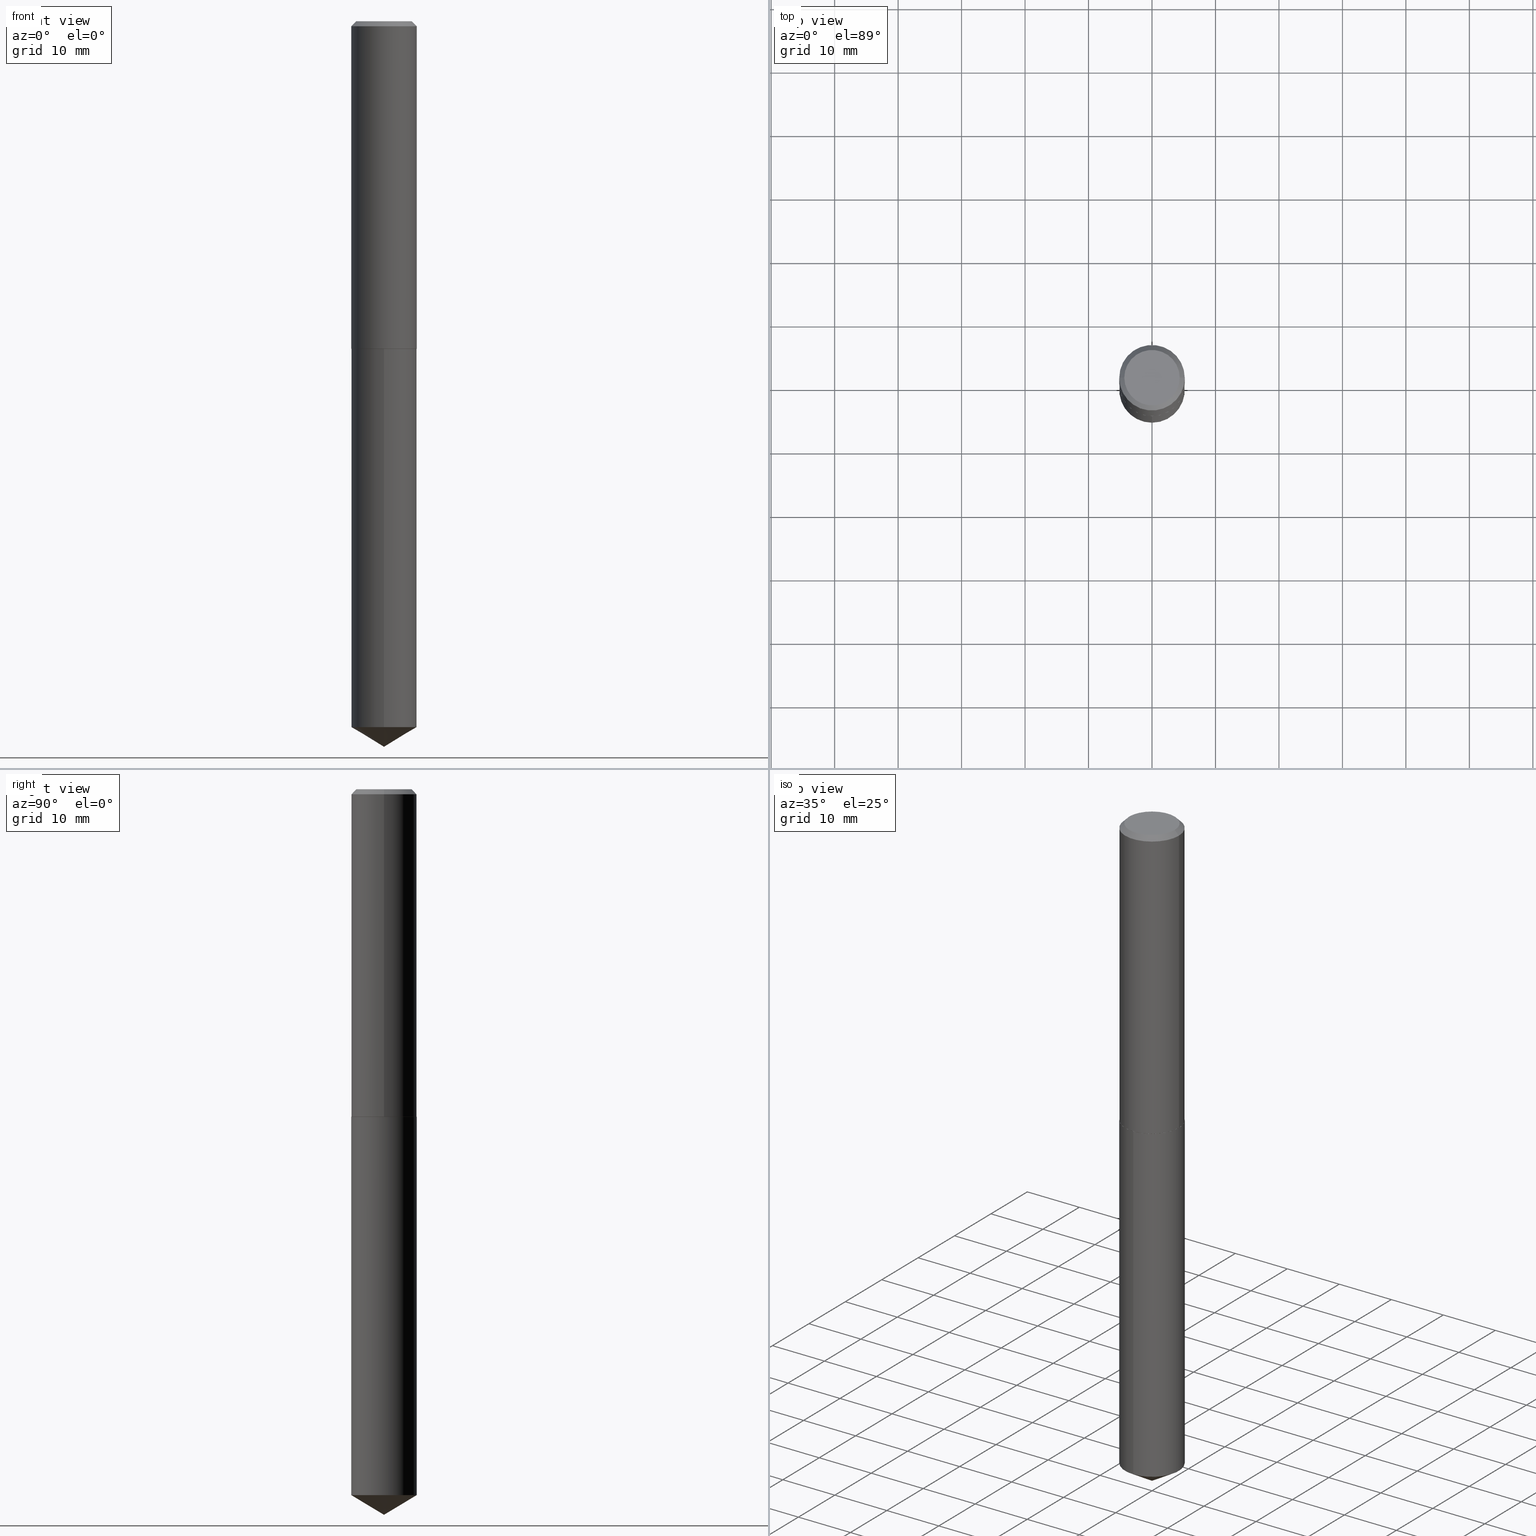
[diagram: canonical four-view strip — front | top / right | iso, engineering-drawing reading convention]
A machine part, canonical four-view strip (front | top / right | iso — engineering-drawing reading convention). The complete STEP part file that produces these views, byte-faithful:
ISO-10303-21;
HEADER;
FILE_DESCRIPTION (( 'STEP AP203' ),
    '1' );
FILE_NAME ('57206.STEP',
    '2024-04-22T23:59:43',
    ( '' ),
    ( '' ),
    'SwSTEP 2.0',
    'SolidWorks 2023',
    '' );
FILE_SCHEMA (( 'CONFIG_CONTROL_DESIGN' ));
ENDSEC;

DATA;
#1 = PLANE ( 'NONE',  #384 ) ;
#2 = FACE_OUTER_BOUND ( 'NONE', #350, .T. ) ;
#3 = EDGE_CURVE ( 'NONE', #246, #102, #108, .T. ) ;
#4 = DIRECTION ( 'NONE',  ( -2.445399436939998011E-29, 3.491580679550436162E-15, 1.000000000000000000 ) ) ;
#5 = CARTESIAN_POINT ( 'NONE',  ( 1.100458174295409768E-28, -1.571170949628766629E-14, -4.500000000000000000 ) ) ;
#6 = EDGE_LOOP ( 'NONE', ( #318, #206, #125, #308 ) ) ;
#7 = ADVANCED_FACE ( 'NONE', ( #50 ), #327, .T. ) ;
#8 =( LENGTH_UNIT ( ) NAMED_UNIT ( * ) SI_UNIT ( $, .METRE. ) );
#9 = APPROVAL_PERSON_ORGANIZATION ( #228, #263, #290 ) ;
#10 = VERTEX_POINT ( 'NONE', #23 ) ;
#11 = CC_DESIGN_PERSON_AND_ORGANIZATION_ASSIGNMENT ( #383, #54, ( #117 ) ) ;
#12 = ORIENTED_EDGE ( 'NONE', *, *, #131, .F. ) ;
#13 = DIRECTION ( 'NONE',  ( -2.445468806185136597E-29, 3.491481338843145583E-15, 1.000000000000000000 ) ) ;
#14 = CLOSED_SHELL ( 'NONE', ( #73, #374, #84, #100, #250, #177, #286, #272 ) ) ;
#15 = CONICAL_SURFACE ( 'NONE', #187, 0.2031000000000002526, 0.7853981633973459164 ) ;
#16 = COORDINATED_UNIVERSAL_TIME_OFFSET ( 5, 0, .BEHIND. ) ;
#17 = CARTESIAN_POINT ( 'NONE',  ( -3.294319100500156682E-48, 4.703414590486523613E-34, 1.347111479062046400E-19 ) ) ;
#18 = EDGE_CURVE ( 'NONE', #33, #188, #166, .T. ) ;
#19 = CALENDAR_DATE ( 2024, 22, 4 ) ;
#20 = DIRECTION ( 'NONE',  ( -2.445399436939998011E-29, 3.491580679550436162E-15, 1.000000000000000000 ) ) ;
#21 = APPROVAL_ROLE ( '' ) ;
#22 = DIRECTION ( 'NONE',  ( -2.445399436939998011E-29, 3.491580679550436162E-15, 1.000000000000000000 ) ) ;
#23 = CARTESIAN_POINT ( 'NONE',  ( -1.418239719837973885E-15, -0.2031000000000152683, -4.377965208275502285 ) ) ;
#24 = CC_DESIGN_PERSON_AND_ORGANIZATION_ASSIGNMENT ( #140, #45, ( #343 ) ) ;
#25 = DIRECTION ( 'NONE',  ( -1.000000000000000000, 6.982962677686266711E-15, 0.000000000000000000 ) ) ;
#26 = DIRECTION ( 'NONE',  ( -6.982962677686266711E-15, -1.000000000000000000, 4.035225987687242674E-15 ) ) ;
#27 = DIRECTION ( 'NONE',  ( -1.000000000000000000, 6.982962677686265922E-15, -4.876176775795935793E-29 ) ) ;
#28 = AXIS2_PLACEMENT_3D ( 'NONE', #313, #98, #306 ) ;
#29 = EDGE_CURVE ( 'NONE', #200, #53, #267, .T. ) ;
#30 = CARTESIAN_POINT ( 'NONE',  ( -0.2026000000000004464, -5.649688085634122738E-15, -2.031200000000000561 ) ) ;
#31 = CARTESIAN_POINT ( 'NONE',  ( -8.527113001442377922E-28, 1.217518950043809216E-13, 34.87007874015748143 ) ) ;
#32 = CONICAL_SURFACE ( 'NONE', #148, 0.2031000000000000028, 0.7853981633974452814 ) ;
#33 = VERTEX_POINT ( 'NONE', #289 ) ;
#34 = AXIS2_PLACEMENT_3D ( 'NONE', #91, #389, #88 ) ;
#35 = EDGE_CURVE ( 'NONE', #369, #246, #386, .T. ) ;
#36 = DIRECTION ( 'NONE',  ( 1.000000000000000000, -6.982962677686266711E-15, 4.876176775795936353E-29 ) ) ;
#37 = MANIFOLD_SOLID_BREP ( 'Body-Move/Copy2[1]', #353 ) ;
#38 = ORIENTED_EDGE ( 'NONE', *, *, #387, .F. ) ;
#39 = VERTEX_POINT ( 'NONE', #137 ) ;
#40 = ORIENTED_EDGE ( 'NONE', *, *, #230, .F. ) ;
#41 = AXIS2_PLACEMENT_3D ( 'NONE', #210, #216, #25 ) ;
#42 = DIRECTION ( 'NONE',  ( -2.445399436939998011E-29, 3.491580679550436162E-15, 1.000000000000000000 ) ) ;
#43 = APPROVAL ( #79, 'UNSPECIFIED' ) ;
#44 = EDGE_LOOP ( 'NONE', ( #283, #252 ) ) ;
#45 = PERSON_AND_ORGANIZATION_ROLE ( 'design_owner' ) ;
#46 = DIRECTION ( 'NONE',  ( 1.000000000000000000, -6.982962677686267499E-15, 4.876176101062914383E-29 ) ) ;
#47 = DESIGN_CONTEXT ( 'detailed design', #116, 'design' ) ;
#48 = PERSON ( 'UNSPECIFIED', 'UNSPECIFIED', 'UNSPECIFIED', ('UNSPECIFIED'), ('UNSPECIFIED'), ('UNSPECIFIED') ) ;
#49 = APPROVAL_ROLE ( '' ) ;
#50 = FACE_OUTER_BOUND ( 'NONE', #274, .T. ) ;
#51 = CC_DESIGN_PERSON_AND_ORGANIZATION_ASSIGNMENT ( #287, #103, ( #81 ) ) ;
#52 = PERSON_AND_ORGANIZATION ( #48, #366 ) ;
#53 = VERTEX_POINT ( 'NONE', #114 ) ;
#54 = PERSON_AND_ORGANIZATION_ROLE ( 'design_supplier' ) ;
#55 = ORIENTED_EDGE ( 'NONE', *, *, #93, .F. ) ;
#56 = DIRECTION ( 'NONE',  ( -6.982962677686266711E-15, -1.000000000000000000, 2.690150658458161520E-15 ) ) ;
#57 = LOCAL_TIME ( 19, 59, 43.00000000000000000, #173 ) ;
#58 = CYLINDRICAL_SURFACE ( 'NONE', #233, 0.2031000000000001415 ) ;
#59 = DIRECTION ( 'NONE',  ( -2.445468806185136597E-29, 3.491481338843145583E-15, 1.000000000000000000 ) ) ;
#60 = CARTESIAN_POINT ( 'NONE',  ( -0.2031000000000002526, -5.647038858460012326E-15, -2.030700000000000394 ) ) ;
#61 = CC_DESIGN_PERSON_AND_ORGANIZATION_ASSIGNMENT ( #349, #324, ( #339 ) ) ;
#62 = ADVANCED_BREP_SHAPE_REPRESENTATION ( '57206', ( #37, #294, #92 ), #220 ) ;
#63 = CARTESIAN_POINT ( 'NONE',  ( 1.443112296328870782E-15, 0.2030999999999928973, -2.031200000000001449 ) ) ;
#64 = AXIS2_PLACEMENT_3D ( 'NONE', #240, #178, #146 ) ;
#65 = CONICAL_SURFACE ( 'NONE', #195, 65.52281426576843160, 1.029744258676654534 ) ;
#66 = CARTESIAN_POINT ( 'NONE',  ( 0.000000000000000000, 0.000000000000000000, 0.000000000000000000 ) ) ;
#67 = CARTESIAN_POINT ( 'NONE',  ( -0.2031000000000000028, -2.156517676985048373E-15, -0.03125000000000020123 ) ) ;
#68 = EDGE_LOOP ( 'NONE', ( #307, #185, #311, #75 ) ) ;
#69 = APPROVAL_PERSON_ORGANIZATION ( #52, #43, #49 ) ;
#70 = EDGE_LOOP ( 'NONE', ( #223, #191, #219, #296 ) ) ;
#71 = DIRECTION ( 'NONE',  ( -2.445468806185136597E-29, 3.491481338843145583E-15, 1.000000000000000000 ) ) ;
#72 = ORIENTED_EDGE ( 'NONE', *, *, #387, .T. ) ;
#73 = ADVANCED_FACE ( 'NONE', ( #260 ), #32, .T. ) ;
#74 = CYLINDRICAL_SURFACE ( 'NONE', #144, 0.2031000000000000028 ) ;
#75 = ORIENTED_EDGE ( 'NONE', *, *, #230, .T. ) ;
#76 = COORDINATED_UNIVERSAL_TIME_OFFSET ( 5, 0, .BEHIND. ) ;
#77 = DIRECTION ( 'NONE',  ( 2.445468806185136597E-29, -3.491481338843145583E-15, -1.000000000000000000 ) ) ;
#78 = DIRECTION ( 'NONE',  ( -2.445468806185136597E-29, 3.491481338843145583E-15, 1.000000000000000000 ) ) ;
#79 = APPROVAL_STATUS ( 'not_yet_approved' ) ;
#80 = DIRECTION ( 'NONE',  ( 1.000000000000000000, -6.982962677686265922E-15, 4.876176775795935793E-29 ) ) ;
#81 = SECURITY_CLASSIFICATION ( '', '', #375 ) ;
#82 = DATE_AND_TIME ( #317, #337 ) ;
#83 = PLANE ( 'NONE',  #194 ) ;
#84 = ADVANCED_FACE ( 'NONE', ( #378 ), #365, .T. ) ;
#85 = MECHANICAL_CONTEXT ( 'NONE', #277, 'mechanical' ) ;
#86 = LINE ( 'NONE', #321, #297 ) ;
#87 = DIRECTION ( 'NONE',  ( -2.445468806185136597E-29, 3.491481338843145583E-15, 1.000000000000000000 ) ) ;
#88 = DIRECTION ( 'NONE',  ( 1.000000000000000000, -6.982962677686266711E-15, 0.000000000000000000 ) ) ;
#89 = DIRECTION ( 'NONE',  ( 1.000000000000000000, -6.982962677686266711E-15, 4.876176775795936353E-29 ) ) ;
#90 = FACE_OUTER_BOUND ( 'NONE', #280, .T. ) ;
#91 = CARTESIAN_POINT ( 'NONE',  ( 7.642090019328601786E-31, -1.091087918388490144E-16, -0.03125000000000020123 ) ) ;
#92 = AXIS2_PLACEMENT_3D ( 'NONE', #319, #231, #295 ) ;
#93 = EDGE_CURVE ( 'NONE', #39, #10, #381, .T. ) ;
#94 = FACE_OUTER_BOUND ( 'NONE', #95, .T. ) ;
#95 = EDGE_LOOP ( 'NONE', ( #189, #304, #156, #264 ) ) ;
#96 = AXIS2_PLACEMENT_3D ( 'NONE', #139, #78, #322 ) ;
#97 = CIRCLE ( 'NONE', #128, 0.2031000000000002526 ) ;
#98 = DIRECTION ( 'NONE',  ( -2.445399436939998011E-29, 3.491580679550436162E-15, 1.000000000000000000 ) ) ;
#99 = ORIENTED_EDGE ( 'NONE', *, *, #18, .F. ) ;
#100 = ADVANCED_FACE ( 'NONE', ( #380 ), #83, .F. ) ;
#101 = DIRECTION ( 'NONE',  ( 2.445399436939997731E-29, -3.491580679550436162E-15, -1.000000000000000000 ) ) ;
#102 = VERTEX_POINT ( 'NONE', #202 ) ;
#103 = PERSON_AND_ORGANIZATION_ROLE ( 'classification_officer' ) ;
#104 = ORIENTED_EDGE ( 'NONE', *, *, #29, .T. ) ;
#105 = VECTOR ( 'NONE', #316, 39.37007874015748143 ) ;
#106 = EDGE_CURVE ( 'NONE', #10, #368, #86, .T. ) ;
#107 = DATE_AND_TIME ( #352, #180 ) ;
#108 = LINE ( 'NONE', #261, #159 ) ;
#109 = ORIENTED_EDGE ( 'NONE', *, *, #35, .F. ) ;
#110 = DIRECTION ( 'NONE',  ( -2.445399436939998011E-29, 3.491580679550436162E-15, 1.000000000000000000 ) ) ;
#111 = VECTOR ( 'NONE', #342, 39.37007874015748143 ) ;
#112 = CARTESIAN_POINT ( 'NONE',  ( -0.2031000000000000028, 1.309130927999231675E-15, -0.03125000000000020123 ) ) ;
#113 = EDGE_CURVE ( 'NONE', #200, #354, #205, .T. ) ;
#114 = CARTESIAN_POINT ( 'NONE',  ( 0.1718500000000000028, -1.340726258051642620E-15, 1.347111479150883290E-19 ) ) ;
#115 = DIRECTION ( 'NONE',  ( -6.982962677686266711E-15, -1.000000000000000000, 4.035225987687242674E-15 ) ) ;
#116 = APPLICATION_CONTEXT ( 'configuration controlled 3d designs of mechanical parts and assemblies' ) ;
#117 = PRODUCT_DEFINITION_FORMATION_WITH_SPECIFIED_SOURCE ( 'ANY', '', #343, .NOT_KNOWN. ) ;
#118 = EDGE_CURVE ( 'NONE', #33, #10, #320, .T. ) ;
#119 = CARTESIAN_POINT ( 'NONE',  ( 4.967236239123250441E-29, -7.091896895458199299E-15, -2.031200000000000561 ) ) ;
#120 = DIRECTION ( 'NONE',  ( -2.445468806185136597E-29, 3.491481338843145583E-15, 1.000000000000000000 ) ) ;
#121 = DIRECTION ( 'NONE',  ( -2.445399436939998011E-29, 3.491580679550436162E-15, 1.000000000000000000 ) ) ;
#122 = CIRCLE ( 'NONE', #175, 0.2031000000000002526 ) ;
#123 = DIRECTION ( 'NONE',  ( -6.982962677686265922E-15, -1.000000000000000000, 3.468864327941594214E-15 ) ) ;
#124 = VECTOR ( 'NONE', #271, 39.37007874015748143 ) ;
#125 = ORIENTED_EDGE ( 'NONE', *, *, #142, .T. ) ;
#126 = ORIENTED_EDGE ( 'NONE', *, *, #118, .F. ) ;
#127 = EDGE_CURVE ( 'NONE', #246, #222, #122, .T. ) ;
#128 = AXIS2_PLACEMENT_3D ( 'NONE', #332, #359, #335 ) ;
#129 = EDGE_LOOP ( 'NONE', ( #161, #338, #282, #348 ) ) ;
#130 = APPLICATION_PROTOCOL_DEFINITION ( 'international standard', 'config_control_design', 1994, #277 ) ;
#131 = EDGE_CURVE ( 'NONE', #196, #369, #253, .T. ) ;
#132 = APPROVAL_DATE_TIME ( #136, #43 ) ;
#133 = DIRECTION ( 'NONE',  ( 1.000000000000000000, -6.982962677686265922E-15, 0.000000000000000000 ) ) ;
#134 = AXIS2_PLACEMENT_3D ( 'NONE', #17, #232, #46 ) ;
#135 = AXIS2_PLACEMENT_3D ( 'NONE', #299, #120, #326 ) ;
#136 = DATE_AND_TIME ( #259, #57 ) ;
#137 = CARTESIAN_POINT ( 'NONE',  ( 1.100429746622999217E-28, -1.571211305797696450E-14, -4.500000000000000000 ) ) ;
#138 = DATE_AND_TIME ( #19, #345 ) ;
#139 = CARTESIAN_POINT ( 'NONE',  ( 4.966013504720158200E-29, -7.090151154788777795E-15, -2.030700000000000394 ) ) ;
#140 = PERSON_AND_ORGANIZATION ( #48, #366 ) ;
#141 = CARTESIAN_POINT ( 'NONE',  ( 0.2031000000000002526, -8.508390874626859359E-15, -2.030700000000000394 ) ) ;
#142 = EDGE_CURVE ( 'NONE', #102, #354, #167, .T. ) ;
#143 = AXIS2_PLACEMENT_3D ( 'NONE', #293, #22, #291 ) ;
#144 = AXIS2_PLACEMENT_3D ( 'NONE', #193, #42, #154 ) ;
#145 = CARTESIAN_POINT ( 'NONE',  ( 1.443112296328812998E-15, 0.2030999999999928973, -2.031200000000001449 ) ) ;
#146 = DIRECTION ( 'NONE',  ( -6.982962677686266711E-15, -1.000000000000000000, 2.690150658458161520E-15 ) ) ;
#147 = DIRECTION ( 'NONE',  ( 1.000000000000000000, -6.982962677686265922E-15, 0.000000000000000000 ) ) ;
#148 = AXIS2_PLACEMENT_3D ( 'NONE', #258, #77, #198 ) ;
#149 = AXIS2_PLACEMENT_3D ( 'NONE', #301, #153, #27 ) ;
#150 = FACE_OUTER_BOUND ( 'NONE', #68, .T. ) ;
#151 = CARTESIAN_POINT ( 'NONE',  ( -0.1718500000000000028, 1.254576532079808505E-15, 1.347111478976217814E-19 ) ) ;
#152 = APPROVAL ( #251, 'UNSPECIFIED' ) ;
#153 = DIRECTION ( 'NONE',  ( 2.438088387897960049E-29, -3.491481338843145188E-15, -1.000000000000000000 ) ) ;
#154 = DIRECTION ( 'NONE',  ( -6.982962677686266711E-15, -1.000000000000000000, 4.035225987687242674E-15 ) ) ;
#155 = CIRCLE ( 'NONE', #281, 0.2031000000000000028 ) ;
#156 = ORIENTED_EDGE ( 'NONE', *, *, #142, .F. ) ;
#157 = EDGE_LOOP ( 'NONE', ( #245, #12 ) ) ;
#158 = EDGE_LOOP ( 'NONE', ( #104, #174 ) ) ;
#159 = VECTOR ( 'NONE', #255, 39.37007874015748143 ) ;
#160 = CIRCLE ( 'NONE', #305, 0.2031000000000000028 ) ;
#161 = ORIENTED_EDGE ( 'NONE', *, *, #300, .T. ) ;
#162 = EDGE_LOOP ( 'NONE', ( #170, #314, #226, #109 ) ) ;
#163 = APPROVAL_DATE_TIME ( #138, #263 ) ;
#164 = CARTESIAN_POINT ( 'NONE',  ( 1.100429746622999217E-28, -1.571211305797696450E-14, -4.500000000000000000 ) ) ;
#165 = COORDINATED_UNIVERSAL_TIME_OFFSET ( 5, 0, .BEHIND. ) ;
#166 = LINE ( 'NONE', #145, #336 ) ;
#167 = CIRCLE ( 'NONE', #34, 0.2031000000000000028 ) ;
#168 = LOCAL_TIME ( 19, 59, 43.00000000000000000, #165 ) ;
#169 = APPROVAL_STATUS ( 'not_yet_approved' ) ;
#170 = ORIENTED_EDGE ( 'NONE', *, *, #323, .T. ) ;
#171 = COORDINATED_UNIVERSAL_TIME_OFFSET ( 5, 0, .BEHIND. ) ;
#172 = EDGE_LOOP ( 'NONE', ( #99, #344, #227, #249 ) ) ;
#173 = COORDINATED_UNIVERSAL_TIME_OFFSET ( 5, 0, .BEHIND. ) ;
#174 = ORIENTED_EDGE ( 'NONE', *, *, #182, .T. ) ;
#175 = AXIS2_PLACEMENT_3D ( 'NONE', #285, #13, #133 ) ;
#176 = CARTESIAN_POINT ( 'NONE',  ( 4.967236239123250441E-29, -7.091896895458199299E-15, -2.031200000000000561 ) ) ;
#177 = ADVANCED_FACE ( 'NONE', ( #90 ), #58, .T. ) ;
#178 = DIRECTION ( 'NONE',  ( -2.445399436939998011E-29, 3.491580679550436162E-15, 1.000000000000000000 ) ) ;
#179 = LINE ( 'NONE', #243, #254 ) ;
#180 = LOCAL_TIME ( 19, 59, 43.00000000000000000, #171 ) ;
#181 = CARTESIAN_POINT ( 'NONE',  ( 0.2031000000000002526, -8.508390874626859359E-15, -2.030700000000000394 ) ) ;
#182 = EDGE_CURVE ( 'NONE', #53, #200, #268, .T. ) ;
#183 = FACE_OUTER_BOUND ( 'NONE', #129, .T. ) ;
#184 = CARTESIAN_POINT ( 'NONE',  ( 0.000000000000000000, 0.000000000000000000, 0.000000000000000000 ) ) ;
#185 = ORIENTED_EDGE ( 'NONE', *, *, #29, .F. ) ;
#186 = AXIS2_PLACEMENT_3D ( 'NONE', #303, #329, #147 ) ;
#187 = AXIS2_PLACEMENT_3D ( 'NONE', #298, #59, #207 ) ;
#188 = VERTEX_POINT ( 'NONE', #63 ) ;
#189 = ORIENTED_EDGE ( 'NONE', *, *, #127, .T. ) ;
#190 = FACE_OUTER_BOUND ( 'NONE', #172, .T. ) ;
#191 = ORIENTED_EDGE ( 'NONE', *, *, #131, .T. ) ;
#192 = PRODUCT_RELATED_PRODUCT_CATEGORY ( 'detail', '', ( #343 ) ) ;
#193 = CARTESIAN_POINT ( 'NONE',  ( 4.967236239123250441E-29, -7.091896895458199299E-15, -2.031200000000000561 ) ) ;
#194 = AXIS2_PLACEMENT_3D ( 'NONE', #229, #351, #80 ) ;
#195 = AXIS2_PLACEMENT_3D ( 'NONE', #31, #121, #123 ) ;
#196 = VERTEX_POINT ( 'NONE', #30 ) ;
#197 = APPROVAL_DATE_TIME ( #82, #152 ) ;
#198 = DIRECTION ( 'NONE',  ( -1.000000000000000000, 6.982962677686266711E-15, 0.000000000000000000 ) ) ;
#199 =( NAMED_UNIT ( * ) PLANE_ANGLE_UNIT ( ) SI_UNIT ( $, .RADIAN. ) );
#200 = VERTEX_POINT ( 'NONE', #151 ) ;
#201 = PERSON_AND_ORGANIZATION_ROLE ( 'creator' ) ;
#202 = CARTESIAN_POINT ( 'NONE',  ( 0.2031000000000000028, -1.527348511676929876E-15, -0.03125000000000020123 ) ) ;
#203 = EDGE_CURVE ( 'NONE', #222, #246, #97, .T. ) ;
#204 =( CONVERSION_BASED_UNIT ( 'INCH', #248 ) LENGTH_UNIT ( ) NAMED_UNIT ( #279 ) );
#205 = LINE ( 'NONE', #112, #105 ) ;
#206 = ORIENTED_EDGE ( 'NONE', *, *, #256, .T. ) ;
#207 = DIRECTION ( 'NONE',  ( 1.000000000000000000, -6.982962677686265922E-15, 0.000000000000000000 ) ) ;
#208 = VECTOR ( 'NONE', #325, 39.37007874015748143 ) ;
#209 = CIRCLE ( 'NONE', #239, 0.2026000000000004464 ) ;
#210 = CARTESIAN_POINT ( 'NONE',  ( 7.642090019328601786E-31, -1.091087918388490144E-16, -0.03125000000000020123 ) ) ;
#211 = LINE ( 'NONE', #270, #124 ) ;
#212 = CYLINDRICAL_SURFACE ( 'NONE', #360, 0.2031000000000000028 ) ;
#213 = VECTOR ( 'NONE', #385, 39.37007874015748143 ) ;
#214 = EDGE_CURVE ( 'NONE', #222, #354, #211, .T. ) ;
#215 = AXIS2_PLACEMENT_3D ( 'NONE', #184, #71, #36 ) ;
#216 = DIRECTION ( 'NONE',  ( 2.445468806185136597E-29, -3.491481338843145583E-15, -1.000000000000000000 ) ) ;
#217 = DIRECTION ( 'NONE',  ( 6.090539988449779224E-15, 0.8571673007021141100, 0.5150380749100511579 ) ) ;
#218 = CC_DESIGN_PERSON_AND_ORGANIZATION_ASSIGNMENT ( #235, #201, ( #117 ) ) ;
#219 = ORIENTED_EDGE ( 'NONE', *, *, #35, .T. ) ;
#220 =( GEOMETRIC_REPRESENTATION_CONTEXT ( 3 ) GLOBAL_UNCERTAINTY_ASSIGNED_CONTEXT ( ( #224 ) ) GLOBAL_UNIT_ASSIGNED_CONTEXT ( ( #204, #199, #292 ) ) REPRESENTATION_CONTEXT ( 'NONE', 'WORKASPACE' ) );
#221 = DIRECTION ( 'NONE',  ( 6.982962677686265922E-15, 1.000000000000000000, -3.491580679550436162E-15 ) ) ;
#222 = VERTEX_POINT ( 'NONE', #60 ) ;
#223 = ORIENTED_EDGE ( 'NONE', *, *, #346, .F. ) ;
#224 = UNCERTAINTY_MEASURE_WITH_UNIT (LENGTH_MEASURE( 1.000000000000000082E-05 ), #204, 'distance_accuracy_value', 'NONE');
#225 = PERSON_AND_ORGANIZATION ( #48, #366 ) ;
#226 = ORIENTED_EDGE ( 'NONE', *, *, #127, .F. ) ;
#227 = ORIENTED_EDGE ( 'NONE', *, *, #106, .T. ) ;
#228 = PERSON_AND_ORGANIZATION ( #48, #366 ) ;
#229 = CARTESIAN_POINT ( 'NONE',  ( 4.967236239123250441E-29, -7.091896895458199299E-15, -2.031200000000000561 ) ) ;
#230 = EDGE_CURVE ( 'NONE', #354, #102, #160, .T. ) ;
#231 = DIRECTION ( 'NONE',  ( 0.000000000000000000, 0.000000000000000000, 1.000000000000000000 ) ) ;
#232 = DIRECTION ( 'NONE',  ( -2.445468806185136597E-29, 3.491481338843145583E-15, 1.000000000000000000 ) ) ;
#233 = AXIS2_PLACEMENT_3D ( 'NONE', #66, #87, #89 ) ;
#234 = CC_DESIGN_SECURITY_CLASSIFICATION ( #81, ( #117 ) ) ;
#235 = PERSON_AND_ORGANIZATION ( #48, #366 ) ;
#236 = CARTESIAN_POINT ( 'NONE',  ( 1.070601455807054017E-28, -1.528581695611409890E-14, -4.377965208275502285 ) ) ;
#237 = ORIENTED_EDGE ( 'NONE', *, *, #300, .F. ) ;
#238 = DIRECTION ( 'NONE',  ( 1.000000000000000000, -6.982962677686266711E-15, 0.000000000000000000 ) ) ;
#239 = AXIS2_PLACEMENT_3D ( 'NONE', #119, #269, #361 ) ;
#240 = CARTESIAN_POINT ( 'NONE',  ( 1.070601455807054017E-28, -1.528581695611409890E-14, -4.377965208275502285 ) ) ;
#241 = CARTESIAN_POINT ( 'NONE',  ( 7.642090019328601786E-31, -1.091087918388490144E-16, -0.03125000000000020123 ) ) ;
#242 = ADVANCED_FACE ( 'NONE', ( #183 ), #212, .T. ) ;
#243 = CARTESIAN_POINT ( 'NONE',  ( 0.2031000000000000028, -1.502475935186247351E-15, -0.03125000000000020123 ) ) ;
#244 = ADVANCED_FACE ( 'NONE', ( #2 ), #65, .T. ) ;
#245 = ORIENTED_EDGE ( 'NONE', *, *, #323, .F. ) ;
#246 = VERTEX_POINT ( 'NONE', #181 ) ;
#247 = LINE ( 'NONE', #372, #111 ) ;
#248 = LENGTH_MEASURE_WITH_UNIT ( LENGTH_MEASURE( 0.02539999999999999897 ), #8 );
#249 = ORIENTED_EDGE ( 'NONE', *, *, #309, .F. ) ;
#250 = ADVANCED_FACE ( 'NONE', ( #302 ), #15, .T. ) ;
#251 = APPROVAL_STATUS ( 'not_yet_approved' ) ;
#252 = ORIENTED_EDGE ( 'NONE', *, *, #309, .T. ) ;
#253 = CIRCLE ( 'NONE', #186, 0.2026000000000004464 ) ;
#254 = VECTOR ( 'NONE', #266, 39.37007874015748143 ) ;
#255 = DIRECTION ( 'NONE',  ( -2.445468806185136877E-29, 3.491481338843145188E-15, 1.000000000000000000 ) ) ;
#256 = EDGE_CURVE ( 'NONE', #53, #102, #179, .T. ) ;
#257 = CALENDAR_DATE ( 2024, 22, 4 ) ;
#258 = CARTESIAN_POINT ( 'NONE',  ( 7.642090019328601786E-31, -1.091087918388490144E-16, -0.03125000000000020123 ) ) ;
#259 = CALENDAR_DATE ( 2024, 22, 4 ) ;
#260 = FACE_OUTER_BOUND ( 'NONE', #6, .T. ) ;
#261 = CARTESIAN_POINT ( 'NONE',  ( 0.2031000000000001415, -1.418239719838081761E-15, 9.903515031641553151E-30 ) ) ;
#262 = CIRCLE ( 'NONE', #28, 0.2031000000000000028 ) ;
#263 = APPROVAL ( #169, 'UNSPECIFIED' ) ;
#264 = ORIENTED_EDGE ( 'NONE', *, *, #3, .F. ) ;
#265 = DIRECTION ( 'NONE',  ( -2.445399436939998011E-29, 3.491580679550436162E-15, 1.000000000000000000 ) ) ;
#266 = DIRECTION ( 'NONE',  ( 0.7071067811865453523, -7.319954787623248157E-15, -0.7071067811865496822 ) ) ;
#267 = CIRCLE ( 'NONE', #134, 0.1718500000000000028 ) ;
#268 = CIRCLE ( 'NONE', #135, 0.1718500000000000028 ) ;
#269 = DIRECTION ( 'NONE',  ( -2.445468806185136597E-29, 3.491481338843145583E-15, 1.000000000000000000 ) ) ;
#270 = CARTESIAN_POINT ( 'NONE',  ( -0.2031000000000001415, 1.443112296328764483E-15, -9.990357168307721209E-30 ) ) ;
#271 = DIRECTION ( 'NONE',  ( -2.445468806185136877E-29, 3.491481338843145188E-15, 1.000000000000000000 ) ) ;
#272 = ADVANCED_FACE ( 'NONE', ( #357 ), #364, .F. ) ;
#273 = CC_DESIGN_APPROVAL ( #152, ( #117 ) ) ;
#274 = EDGE_LOOP ( 'NONE', ( #38, #341, #126 ) ) ;
#275 = CYLINDRICAL_SURFACE ( 'NONE', #215, 0.2031000000000001415 ) ;
#276 = ORIENTED_EDGE ( 'NONE', *, *, #3, .T. ) ;
#277 = APPLICATION_CONTEXT ( 'configuration controlled 3d designs of mechanical parts and assemblies' ) ;
#278 = CARTESIAN_POINT ( 'NONE',  ( 4.967236239123250441E-29, -7.091896895458199299E-15, -2.031200000000000561 ) ) ;
#279 = DIMENSIONAL_EXPONENTS ( 1.000000000000000000, 0.000000000000000000, 0.000000000000000000, 0.000000000000000000, 0.000000000000000000, 0.000000000000000000, 0.000000000000000000 ) ;
#280 = EDGE_LOOP ( 'NONE', ( #373, #376, #276, #40 ) ) ;
#281 = AXIS2_PLACEMENT_3D ( 'NONE', #388, #265, #26 ) ;
#282 = ORIENTED_EDGE ( 'NONE', *, *, #355, .F. ) ;
#283 = ORIENTED_EDGE ( 'NONE', *, *, #355, .T. ) ;
#284 = SHAPE_DEFINITION_REPRESENTATION ( #363, #62 ) ;
#285 = CARTESIAN_POINT ( 'NONE',  ( 4.966013504720158200E-29, -7.090151154788777795E-15, -2.030700000000000394 ) ) ;
#286 = ADVANCED_FACE ( 'NONE', ( #150 ), #328, .T. ) ;
#287 = PERSON_AND_ORGANIZATION ( #48, #366 ) ;
#288 = CC_DESIGN_APPROVAL ( #43, ( #339 ) ) ;
#289 = CARTESIAN_POINT ( 'NONE',  ( 1.443112296328870388E-15, 0.2030999999999847094, -4.377965208275503173 ) ) ;
#290 = APPROVAL_ROLE ( '' ) ;
#291 = DIRECTION ( 'NONE',  ( -6.982962677686265922E-15, -1.000000000000000000, 3.468864327941594214E-15 ) ) ;
#292 =( NAMED_UNIT ( * ) SI_UNIT ( $, .STERADIAN. ) SOLID_ANGLE_UNIT ( ) );
#293 = CARTESIAN_POINT ( 'NONE',  ( -8.527113001442377922E-28, 1.217518950043809216E-13, 34.87007874015748143 ) ) ;
#294 = MANIFOLD_SOLID_BREP ( 'Body-Move/Copy2[2]', #14 ) ;
#295 = DIRECTION ( 'NONE',  ( 1.000000000000000000, 0.000000000000000000, 0.000000000000000000 ) ) ;
#296 = ORIENTED_EDGE ( 'NONE', *, *, #203, .F. ) ;
#297 = VECTOR ( 'NONE', #110, 39.37007874015748143 ) ;
#298 = CARTESIAN_POINT ( 'NONE',  ( 4.966013504720158200E-29, -7.090151154788777795E-15, -2.030700000000000394 ) ) ;
#299 = CARTESIAN_POINT ( 'NONE',  ( -3.294319100500156682E-48, 4.703414590486523613E-34, 1.347111479062046400E-19 ) ) ;
#300 = EDGE_CURVE ( 'NONE', #10, #33, #371, .T. ) ;
#301 = CARTESIAN_POINT ( 'NONE',  ( -1.647159550250078341E-48, 2.351707295243261806E-34, 6.735557395310232002E-20 ) ) ;
#302 = FACE_OUTER_BOUND ( 'NONE', #70, .T. ) ;
#303 = CARTESIAN_POINT ( 'NONE',  ( 4.967236239123250441E-29, -7.091896895458199299E-15, -2.031200000000000561 ) ) ;
#304 = ORIENTED_EDGE ( 'NONE', *, *, #214, .T. ) ;
#305 = AXIS2_PLACEMENT_3D ( 'NONE', #241, #362, #238 ) ;
#306 = DIRECTION ( 'NONE',  ( -6.982962677686266711E-15, -1.000000000000000000, 4.035225987687242674E-15 ) ) ;
#307 = ORIENTED_EDGE ( 'NONE', *, *, #256, .F. ) ;
#308 = ORIENTED_EDGE ( 'NONE', *, *, #113, .F. ) ;
#309 = EDGE_CURVE ( 'NONE', #188, #368, #155, .T. ) ;
#310 = LINE ( 'NONE', #5, #312 ) ;
#311 = ORIENTED_EDGE ( 'NONE', *, *, #113, .T. ) ;
#312 = VECTOR ( 'NONE', #217, 39.37007874015748143 ) ;
#313 = CARTESIAN_POINT ( 'NONE',  ( 4.967236239123250441E-29, -7.091896895458199299E-15, -2.031200000000000561 ) ) ;
#314 = ORIENTED_EDGE ( 'NONE', *, *, #346, .T. ) ;
#315 = APPLICATION_PROTOCOL_DEFINITION ( 'international standard', 'config_control_design', 1994, #116 ) ;
#316 = DIRECTION ( 'NONE',  ( -0.7071067811865453523, 2.468850131082234184E-15, -0.7071067811865496822 ) ) ;
#317 = CALENDAR_DATE ( 2024, 22, 4 ) ;
#318 = ORIENTED_EDGE ( 'NONE', *, *, #182, .F. ) ;
#319 = CARTESIAN_POINT ( 'NONE',  ( 0.000000000000000000, 0.000000000000000000, 0.000000000000000000 ) ) ;
#320 = CIRCLE ( 'NONE', #370, 0.2031000000000000028 ) ;
#321 = CARTESIAN_POINT ( 'NONE',  ( -1.418239719838031077E-15, -0.2031000000000071082, -2.031199999999999672 ) ) ;
#322 = DIRECTION ( 'NONE',  ( 1.000000000000000000, -6.982962677686265922E-15, 0.000000000000000000 ) ) ;
#323 = EDGE_CURVE ( 'NONE', #369, #196, #209, .T. ) ;
#324 = PERSON_AND_ORGANIZATION_ROLE ( 'creator' ) ;
#325 = DIRECTION ( 'NONE',  ( 0.7071067811864750752, -2.468850131081498176E-15, 0.7071067811866199593 ) ) ;
#326 = DIRECTION ( 'NONE',  ( 1.000000000000000000, -6.982962677686267499E-15, 4.876176101062914383E-29 ) ) ;
#327 = CONICAL_SURFACE ( 'NONE', #143, 65.52281426576843160, 1.029744258676654534 ) ;
#328 = CONICAL_SURFACE ( 'NONE', #41, 0.2031000000000000028, 0.7853981633974452814 ) ;
#329 = DIRECTION ( 'NONE',  ( -2.445468806185136597E-29, 3.491481338843145583E-15, 1.000000000000000000 ) ) ;
#330 = ADVANCED_FACE ( 'NONE', ( #331 ), #1, .F. ) ;
#331 = FACE_OUTER_BOUND ( 'NONE', #44, .T. ) ;
#332 = CARTESIAN_POINT ( 'NONE',  ( 4.966013504720158200E-29, -7.090151154788777795E-15, -2.030700000000000394 ) ) ;
#333 = APPROVAL_PERSON_ORGANIZATION ( #225, #152, #21 ) ;
#334 = CC_DESIGN_DATE_AND_TIME_ASSIGNMENT ( #379, #347, ( #81 ) ) ;
#335 = DIRECTION ( 'NONE',  ( 1.000000000000000000, -6.982962677686265922E-15, 0.000000000000000000 ) ) ;
#336 = VECTOR ( 'NONE', #20, 39.37007874015748143 ) ;
#337 = LOCAL_TIME ( 19, 59, 43.00000000000000000, #16 ) ;
#338 = ORIENTED_EDGE ( 'NONE', *, *, #18, .T. ) ;
#339 = PRODUCT_DEFINITION ( 'UNKNOWN', '', #117, #47 ) ;
#340 = CARTESIAN_POINT ( 'NONE',  ( 0.2026000000000004464, -8.506645133957440222E-15, -2.031200000000000561 ) ) ;
#341 = ORIENTED_EDGE ( 'NONE', *, *, #93, .T. ) ;
#342 = DIRECTION ( 'NONE',  ( -0.7071067811864750752, 7.493145998870092258E-15, 0.7071067811866199593 ) ) ;
#343 = PRODUCT ( '57206', '57206', '', ( #85 ) ) ;
#344 = ORIENTED_EDGE ( 'NONE', *, *, #118, .T. ) ;
#345 = LOCAL_TIME ( 19, 59, 43.00000000000000000, #76 ) ;
#346 = EDGE_CURVE ( 'NONE', #196, #222, #247, .T. ) ;
#347 = DATE_TIME_ROLE ( 'classification_date' ) ;
#348 = ORIENTED_EDGE ( 'NONE', *, *, #106, .F. ) ;
#349 = PERSON_AND_ORGANIZATION ( #48, #366 ) ;
#350 = EDGE_LOOP ( 'NONE', ( #55, #72, #237 ) ) ;
#351 = DIRECTION ( 'NONE',  ( -2.438088387897960049E-29, 3.491481338843145188E-15, 1.000000000000000000 ) ) ;
#352 = CALENDAR_DATE ( 2024, 22, 4 ) ;
#353 = CLOSED_SHELL ( 'NONE', ( #242, #244, #7, #382, #330 ) ) ;
#354 = VERTEX_POINT ( 'NONE', #67 ) ;
#355 = EDGE_CURVE ( 'NONE', #368, #188, #262, .T. ) ;
#356 = DIRECTION ( 'NONE',  ( -2.445399436939998011E-29, 3.491580679550436162E-15, 1.000000000000000000 ) ) ;
#357 = FACE_OUTER_BOUND ( 'NONE', #158, .T. ) ;
#358 = CC_DESIGN_DATE_AND_TIME_ASSIGNMENT ( #107, #377, ( #339 ) ) ;
#359 = DIRECTION ( 'NONE',  ( -2.445468806185136597E-29, 3.491481338843145583E-15, 1.000000000000000000 ) ) ;
#360 = AXIS2_PLACEMENT_3D ( 'NONE', #176, #4, #115 ) ;
#361 = DIRECTION ( 'NONE',  ( 1.000000000000000000, -6.982962677686265922E-15, 0.000000000000000000 ) ) ;
#362 = DIRECTION ( 'NONE',  ( -2.445468806185136597E-29, 3.491481338843145583E-15, 1.000000000000000000 ) ) ;
#363 = PRODUCT_DEFINITION_SHAPE ( 'NONE', 'NONE',  #339 ) ;
#364 = PLANE ( 'NONE',  #149 ) ;
#365 = CONICAL_SURFACE ( 'NONE', #96, 0.2031000000000002526, 0.7853981633973459164 ) ;
#366 = ORGANIZATION ( 'UNSPECIFIED', 'UNSPECIFIED', '' ) ;
#367 = CARTESIAN_POINT ( 'NONE',  ( -1.418239719838031077E-15, -0.2031000000000071082, -2.031199999999999672 ) ) ;
#368 = VERTEX_POINT ( 'NONE', #367 ) ;
#369 = VERTEX_POINT ( 'NONE', #340 ) ;
#370 = AXIS2_PLACEMENT_3D ( 'NONE', #236, #356, #56 ) ;
#371 = CIRCLE ( 'NONE', #64, 0.2031000000000000028 ) ;
#372 = CARTESIAN_POINT ( 'NONE',  ( -0.2031000000000002526, -5.647038858460012326E-15, -2.030700000000000394 ) ) ;
#373 = ORIENTED_EDGE ( 'NONE', *, *, #214, .F. ) ;
#374 = ADVANCED_FACE ( 'NONE', ( #94 ), #275, .T. ) ;
#375 = SECURITY_CLASSIFICATION_LEVEL ( 'unclassified' ) ;
#376 = ORIENTED_EDGE ( 'NONE', *, *, #203, .T. ) ;
#377 = DATE_TIME_ROLE ( 'creation_date' ) ;
#378 = FACE_OUTER_BOUND ( 'NONE', #162, .T. ) ;
#379 = DATE_AND_TIME ( #257, #168 ) ;
#380 = FACE_OUTER_BOUND ( 'NONE', #157, .T. ) ;
#381 = LINE ( 'NONE', #164, #213 ) ;
#382 = ADVANCED_FACE ( 'NONE', ( #190 ), #74, .T. ) ;
#383 = PERSON_AND_ORGANIZATION ( #48, #366 ) ;
#384 = AXIS2_PLACEMENT_3D ( 'NONE', #278, #101, #221 ) ;
#385 = DIRECTION ( 'NONE',  ( -5.985567269335943646E-15, -0.8571673007021105573, 0.5150380749100571531 ) ) ;
#386 = LINE ( 'NONE', #141, #208 ) ;
#387 = EDGE_CURVE ( 'NONE', #39, #33, #310, .T. ) ;
#388 = CARTESIAN_POINT ( 'NONE',  ( 4.967236239123250441E-29, -7.091896895458199299E-15, -2.031200000000000561 ) ) ;
#389 = DIRECTION ( 'NONE',  ( -2.445468806185136597E-29, 3.491481338843145583E-15, 1.000000000000000000 ) ) ;
#390 = CC_DESIGN_APPROVAL ( #263, ( #81 ) ) ;
ENDSEC;
END-ISO-10303-21;
